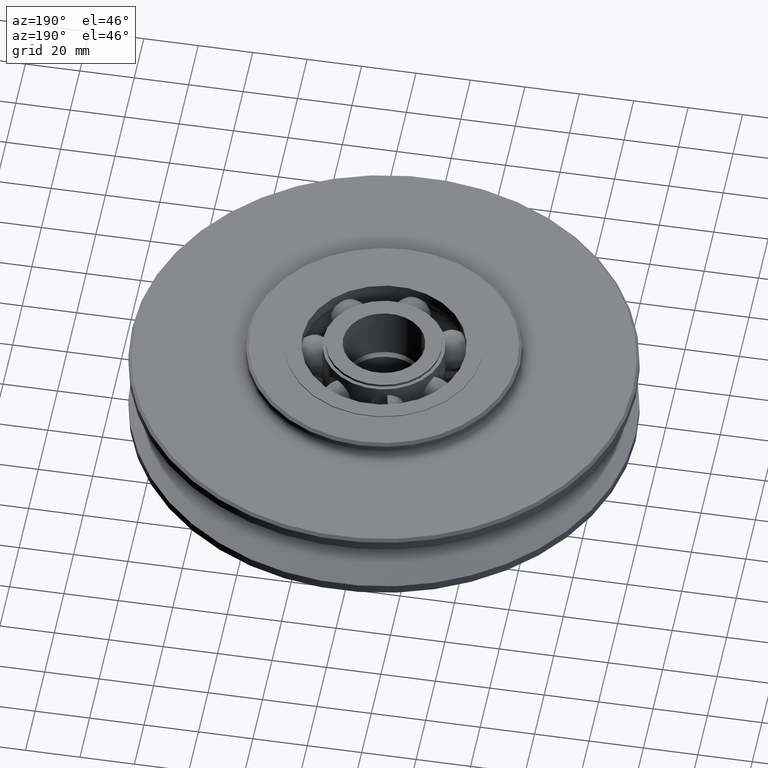
[diagram: clean part render]
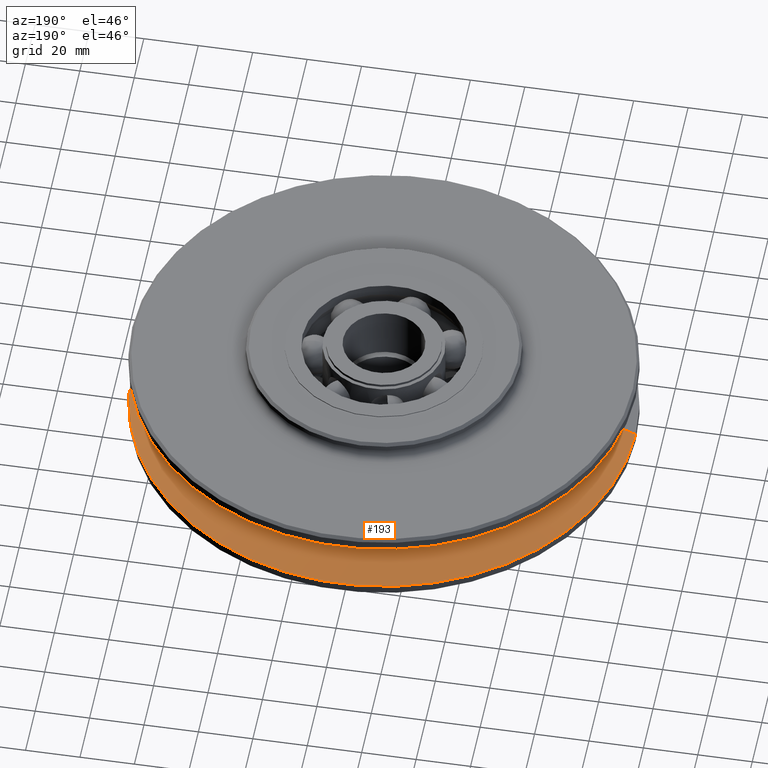
[diagram: same view with one face highlighted and labeled with its STEP entity id]
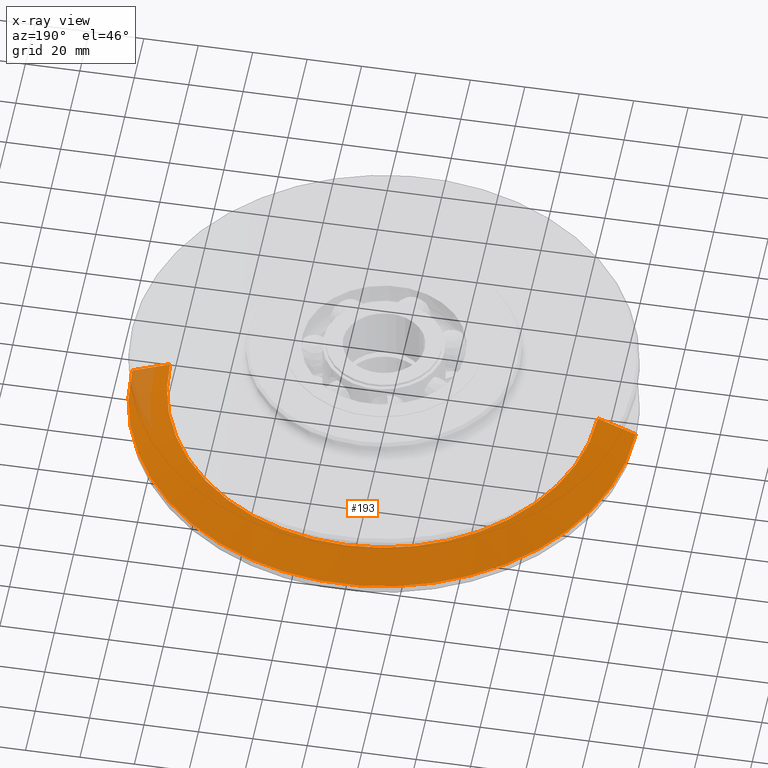
[diagram: x-ray of the same camera — body ghosted, the highlighted face saturated]
A machine part, auxiliary view. The second image highlights one B-rep face of the part: STEP entity #193.
The next image is the same camera in x-ray: the body ghosted, the highlighted face saturated — about 4% of this face is hidden behind the body in this view.
In plain terms, the highlighted conical surface has half-angle 67.5 deg.
Its self-contained STEP definition (entity closure, byte-faithful):
#193=ADVANCED_FACE('',(#487),#488,.T.);
#487=FACE_OUTER_BOUND('',#905,.T.);
#488=CONICAL_SURFACE('',#906,85.546365,1.17809723586448);
#905=EDGE_LOOP('',(#1417,#1418,#1419,#1420));
#906=AXIS2_PLACEMENT_3D('',#1421,#1422,#1423);
#1417=ORIENTED_EDGE('',*,*,#2656,.F.);
#1418=ORIENTED_EDGE('',*,*,#2657,.T.);
#1419=ORIENTED_EDGE('',*,*,#2658,.F.);
#1420=ORIENTED_EDGE('',*,*,#2659,.F.);
#1421=CARTESIAN_POINT('',(0.0,0.0,-6.760584));
#1422=DIRECTION('',(-0.0,-0.0,-1.0));
#1423=DIRECTION('',(1.0,0.0,0.0));
#2656=EDGE_CURVE('',#3249,#3245,#3250,.T.);
#2657=EDGE_CURVE('',#3249,#3251,#3252,.T.);
#2658=EDGE_CURVE('',#3243,#3251,#3253,.T.);
#2659=EDGE_CURVE('',#3245,#3243,#3254,.T.);
#3243=VERTEX_POINT('',#5100);
#3245=VERTEX_POINT('',#5102);
#3249=VERTEX_POINT('',#5106);
#3250=LINE('',#5107,#5108);
#3251=VERTEX_POINT('',#5109);
#3252=CIRCLE('',#5110,92.5);
#3253=LINE('',#5111,#5112);
#3254=CIRCLE('',#5113,78.59273);
#5100=CARTESIAN_POINT('',(-78.59273,9.62483352307521E-015,-3.880294));
#5102=CARTESIAN_POINT('',(78.59273,0.0,-3.880294));
#5106=CARTESIAN_POINT('',(92.5,0.0,-9.640874));
#5107=CARTESIAN_POINT('',(85.546365,-1.04764082075941E-014,-6.760584));
#5108=VECTOR('',#8644,1.0);
#5109=CARTESIAN_POINT('',(-92.5,1.1327982892113E-014,-9.640874));
#5110=AXIS2_PLACEMENT_3D('',#8645,#8646,#8647);
#5111=CARTESIAN_POINT('',(-85.546365,1.04764082075941E-014,-6.760584));
#5112=VECTOR('',#8648,1.0);
#5113=AXIS2_PLACEMENT_3D('',#8649,#8650,#8651);
#8644=DIRECTION('',(-0.92387952897847,1.13142610796125E-016,0.382683440894065));
#8645=CARTESIAN_POINT('',(0.0,0.0,-9.640874));
#8646=DIRECTION('',(0.0,0.0,1.0));
#8647=DIRECTION('',(1.0,0.0,0.0));
#8648=DIRECTION('',(-0.92387952897847,1.13142610796125E-016,-0.382683440894065));
#8649=CARTESIAN_POINT('',(0.0,0.0,-3.880294));
#8650=DIRECTION('',(0.0,0.0,1.0));
#8651=DIRECTION('',(1.0,0.0,0.0));